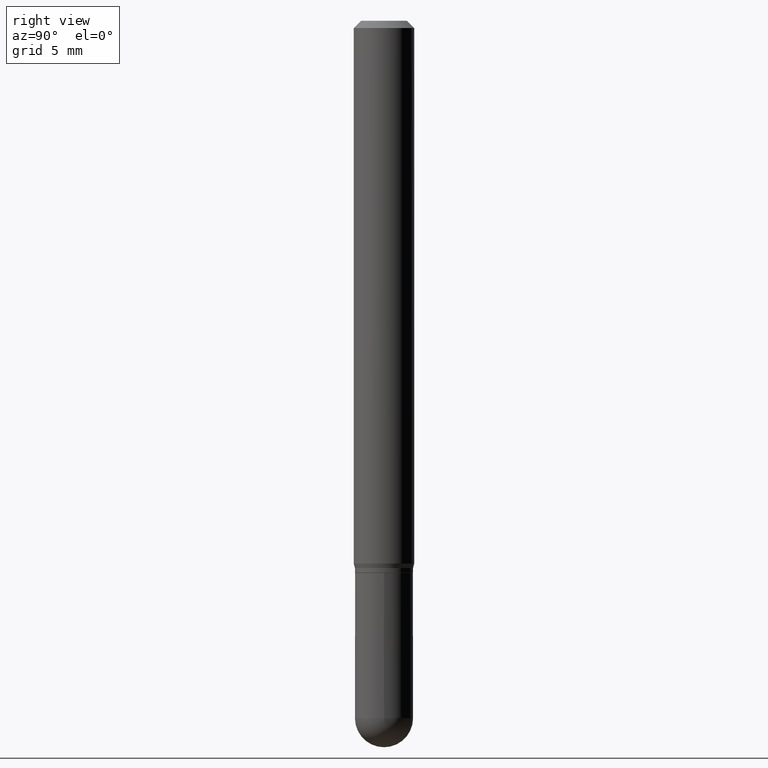
[diagram: clean part render]
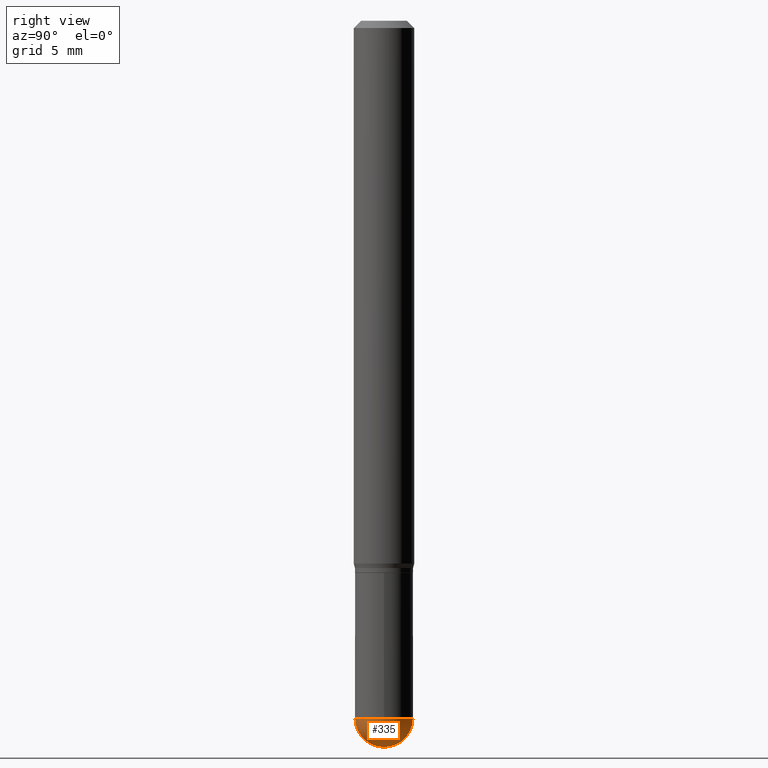
[diagram: same view with one face highlighted and labeled with its STEP entity id]
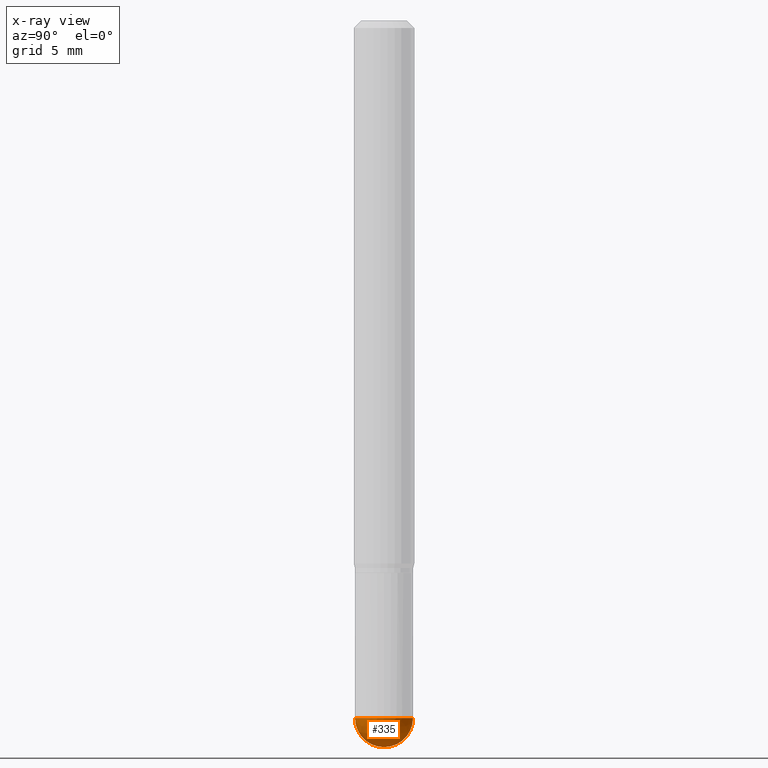
[diagram: x-ray of the same camera — body ghosted, the highlighted face saturated]
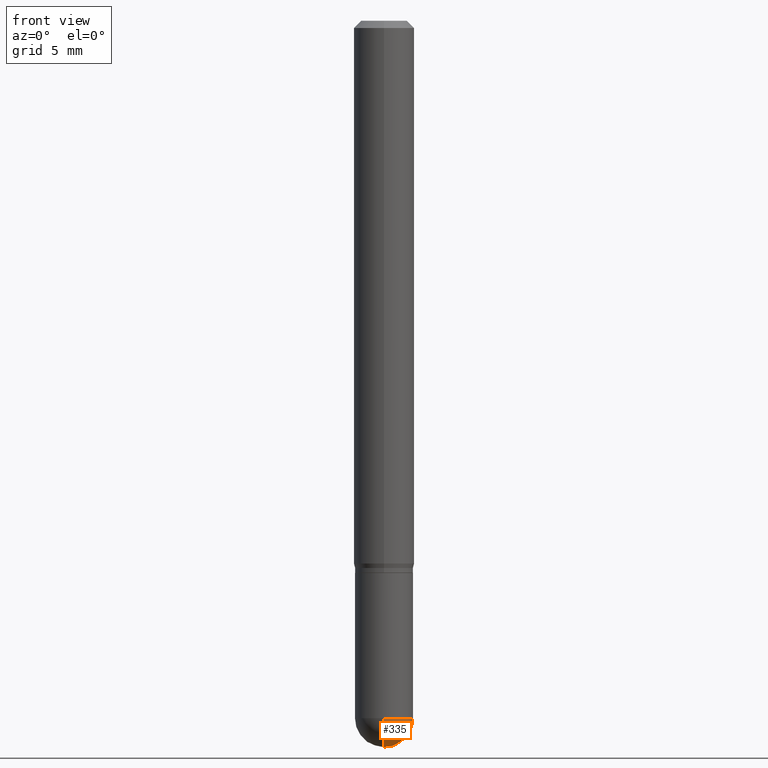
[diagram: same view with one face highlighted and labeled with its STEP entity id]
A machine part, right view. The second image highlights one B-rep face of the part: STEP entity #335.
The next image is the same camera in x-ray: the body ghosted, the highlighted face saturated — about 0% of this face is hidden behind the body in this view.
A second angle (front view) of the same face is appended — the face is thin or edge-on in the first view.
In plain terms, the highlighted spherical surface has radius 1.524 mm.
Its self-contained STEP definition (entity closure, byte-faithful):
#14 = DIRECTION ( 'NONE',  ( 1.000000000000000000, -6.982962677686266711E-15, 0.000000000000000000 ) ) ;
#19 = CARTESIAN_POINT ( 'NONE',  ( 4.263256414560955945E-16, 0.05999999999999502259, -1.440000000000000391 ) ) ;
#23 = EDGE_CURVE ( 'NONE', #158, #119, #67, .T. ) ;
#52 = AXIS2_PLACEMENT_3D ( 'NONE', #136, #172, #14 ) ;
#67 = CIRCLE ( 'NONE', #503, 0.06000000000000001166 ) ;
#89 = FACE_OUTER_BOUND ( 'NONE', #111, .T. ) ;
#92 = CARTESIAN_POINT ( 'NONE',  ( 3.660506712675090959E-29, -5.248243829457045539E-15, -1.500000000000000444 ) ) ;
#101 = AXIS2_PLACEMENT_3D ( 'NONE', #242, #138, #405 ) ;
#103 = CARTESIAN_POINT ( 'NONE',  ( -4.189777606611411350E-16, -0.06000000000000507705, -1.439999999999999947 ) ) ;
#111 = EDGE_LOOP ( 'NONE', ( #268, #476, #115, #113 ) ) ;
#113 = ORIENTED_EDGE ( 'NONE', *, *, #375, .F. ) ;
#115 = ORIENTED_EDGE ( 'NONE', *, *, #23, .F. ) ;
#119 = VERTEX_POINT ( 'NONE', #19 ) ;
#136 = CARTESIAN_POINT ( 'NONE',  ( 3.521475080906597305E-29, -5.027733127934130649E-15, -1.440000000000000169 ) ) ;
#138 = DIRECTION ( 'NONE',  ( 1.000000000000000000, -6.982962677686265922E-15, 4.883557194083112901E-29 ) ) ;
#158 = VERTEX_POINT ( 'NONE', #215 ) ;
#168 = CIRCLE ( 'NONE', #52, 0.06000000000000001166 ) ;
#169 = SPHERICAL_SURFACE ( 'NONE', #101, 0.06000000000000009492 ) ;
#172 = DIRECTION ( 'NONE',  ( -2.445468806185136597E-29, 3.491481338843145583E-15, 1.000000000000000000 ) ) ;
#179 = CIRCLE ( 'NONE', #302, 0.06000000000000009492 ) ;
#215 = CARTESIAN_POINT ( 'NONE',  ( 0.06000000000000001166, -4.922988687768835701E-15, -1.440000000000000169 ) ) ;
#217 = DIRECTION ( 'NONE',  ( -6.982962677686265922E-15, -1.000000000000000000, 0.000000000000000000 ) ) ;
#242 = CARTESIAN_POINT ( 'NONE',  ( 3.516344083171520973E-29, -5.035081008729014505E-15, -1.440000000000000169 ) ) ;
#256 = DIRECTION ( 'NONE',  ( 1.000000000000000000, -7.105427357601001070E-15, 4.926315508542082329E-29 ) ) ;
#258 = CARTESIAN_POINT ( 'NONE',  ( 3.516344083171520973E-29, -5.035081008729014505E-15, -1.440000000000000169 ) ) ;
#268 = ORIENTED_EDGE ( 'NONE', *, *, #500, .F. ) ;
#277 = DIRECTION ( 'NONE',  ( 1.000000000000000000, -6.982962677686266711E-15, 0.000000000000000000 ) ) ;
#288 = EDGE_CURVE ( 'NONE', #317, #119, #314, .T. ) ;
#302 = AXIS2_PLACEMENT_3D ( 'NONE', #258, #415, #217 ) ;
#314 = CIRCLE ( 'NONE', #453, 0.06000000000000009492 ) ;
#317 = VERTEX_POINT ( 'NONE', #92 ) ;
#326 = CARTESIAN_POINT ( 'NONE',  ( 3.516344083171520973E-29, -5.035081008729014505E-15, -1.440000000000000169 ) ) ;
#335 = ADVANCED_FACE ( 'NONE', ( #89 ), #169, .T. ) ;
#355 = CARTESIAN_POINT ( 'NONE',  ( 3.521475080906597305E-29, -5.027733127934130649E-15, -1.440000000000000169 ) ) ;
#375 = EDGE_CURVE ( 'NONE', #464, #158, #168, .T. ) ;
#405 = DIRECTION ( 'NONE',  ( -6.982962677686265922E-15, -1.000000000000000000, 4.553079989440431203E-15 ) ) ;
#415 = DIRECTION ( 'NONE',  ( -1.000000000000000000, 6.982962677686265922E-15, -4.883557194083112340E-29 ) ) ;
#431 = DIRECTION ( 'NONE',  ( -2.445468806185136597E-29, 3.491481338843145583E-15, 1.000000000000000000 ) ) ;
#445 = DIRECTION ( 'NONE',  ( 7.105427357601001070E-15, 1.000000000000000000, 0.000000000000000000 ) ) ;
#453 = AXIS2_PLACEMENT_3D ( 'NONE', #326, #256, #445 ) ;
#464 = VERTEX_POINT ( 'NONE', #103 ) ;
#476 = ORIENTED_EDGE ( 'NONE', *, *, #288, .T. ) ;
#500 = EDGE_CURVE ( 'NONE', #317, #464, #179, .T. ) ;
#503 = AXIS2_PLACEMENT_3D ( 'NONE', #355, #431, #277 ) ;